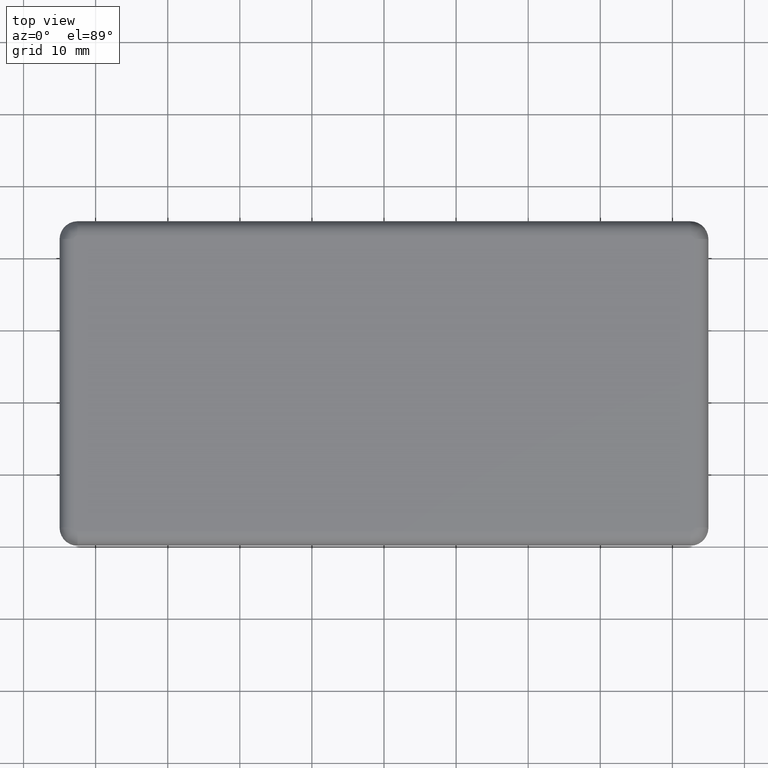
[diagram: clean part render]
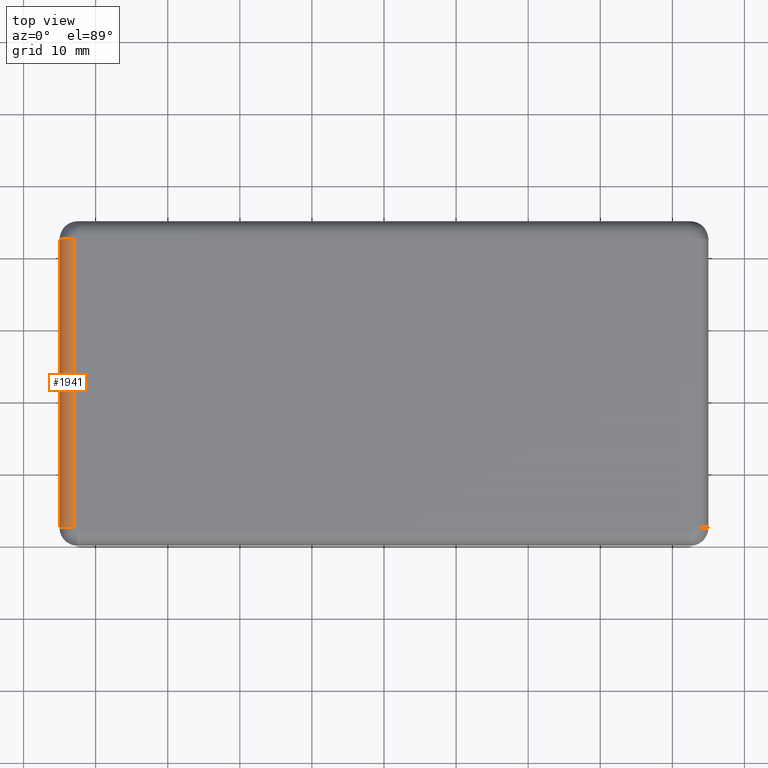
[diagram: same view with one face highlighted and labeled with its STEP entity id]
A machine part, top view. The second image highlights one B-rep face of the part: STEP entity #1941.
In plain terms, the highlighted cylindrical surface (edge-blend (fillet) strip) has radius 2 mm, axis along (0, 1, -0).
Its self-contained STEP definition (entity closure, byte-faithful):
#1455=CARTESIAN_POINT('',(-44.999999999999993,2.500000000000000,1.0));
#1456=VERTEX_POINT('',#1455);
#1480=CARTESIAN_POINT('',(-44.999999999999993,42.499999999999993,0.999999999999995));
#1481=VERTEX_POINT('',#1480);
#1482=CARTESIAN_POINT('',(-44.999999999999993,2.500000000000000,1.0));
#1483=DIRECTION('',(0.0,1.0,0.0));
#1484=VECTOR('',#1483,39.999999999999993);
#1485=LINE('',#1482,#1484);
#1486=EDGE_CURVE('',#1456,#1481,#1485,.T.);
#1643=CARTESIAN_POINT('',(-42.999999999999993,2.500000000000000,3.0));
#1644=VERTEX_POINT('',#1643);
#1696=CARTESIAN_POINT('',(-42.999999999999993,42.499999999999993,2.999999999999995));
#1697=VERTEX_POINT('',#1696);
#1705=CARTESIAN_POINT('',(-42.999999999999993,42.499999999999986,2.999999999999995));
#1706=DIRECTION('',(0.0,-1.0,0.0));
#1707=VECTOR('',#1706,39.999999999999986);
#1708=LINE('',#1705,#1707);
#1709=EDGE_CURVE('',#1697,#1644,#1708,.T.);
#1895=CARTESIAN_POINT('',(-42.999999999999993,42.499999999999993,0.999999999999995));
#1896=DIRECTION('',(0.0,-1.0,1.224647E-016));
#1897=DIRECTION('',(0.0,-1.224647E-016,-1.0));
#1898=AXIS2_PLACEMENT_3D('',#1895,#1896,#1897);
#1899=CIRCLE('',#1898,2.0);
#1900=EDGE_CURVE('',#1697,#1481,#1899,.T.);
#1924=CARTESIAN_POINT('',(-42.999999999999993,2.499999990000000,1.000000000000000));
#1925=DIRECTION('',(0.0,1.0,-1.224647E-016));
#1926=DIRECTION('',(0.707106781186548,-8.659561E-017,-0.707106781186547));
#1927=AXIS2_PLACEMENT_3D('',#1924,#1925,#1926);
#1928=CYLINDRICAL_SURFACE('',#1927,2.0);
#1929=ORIENTED_EDGE('',*,*,#1900,.T.);
#1930=ORIENTED_EDGE('',*,*,#1486,.F.);
#1931=CARTESIAN_POINT('',(-42.999999999999993,2.500000000000000,1.000000000000000));
#1932=DIRECTION('',(0.0,-1.0,1.224647E-016));
#1933=DIRECTION('',(-1.0,0.0,0.0));
#1934=AXIS2_PLACEMENT_3D('',#1931,#1932,#1933);
#1935=CIRCLE('',#1934,2.000000000000001);
#1936=EDGE_CURVE('',#1644,#1456,#1935,.T.);
#1937=ORIENTED_EDGE('',*,*,#1936,.F.);
#1938=ORIENTED_EDGE('',*,*,#1709,.F.);
#1939=EDGE_LOOP('',(#1929,#1930,#1937,#1938));
#1940=FACE_OUTER_BOUND('',#1939,.T.);
#1941=ADVANCED_FACE('',(#1940),#1928,.T.);